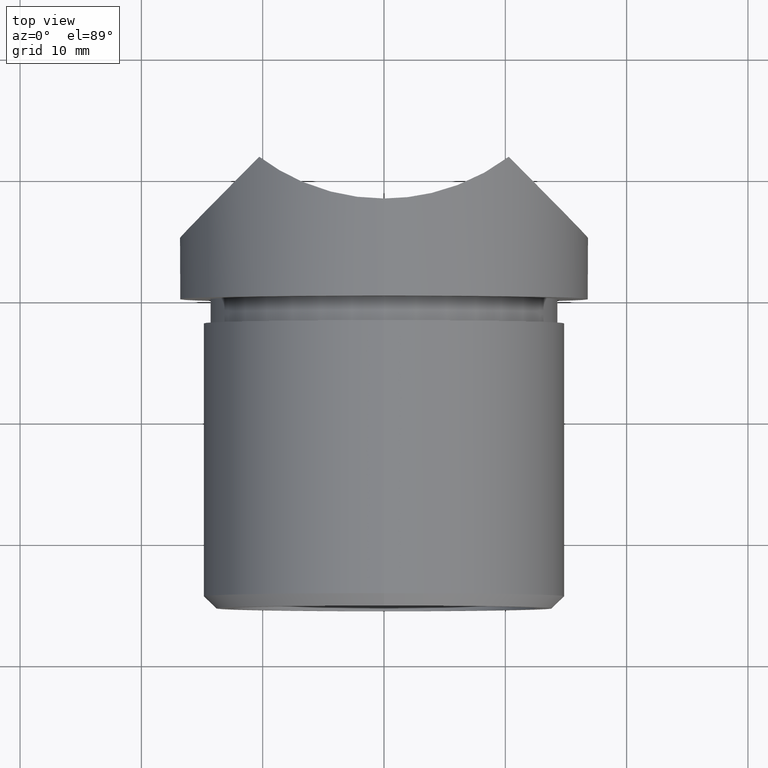
[diagram: clean part render]
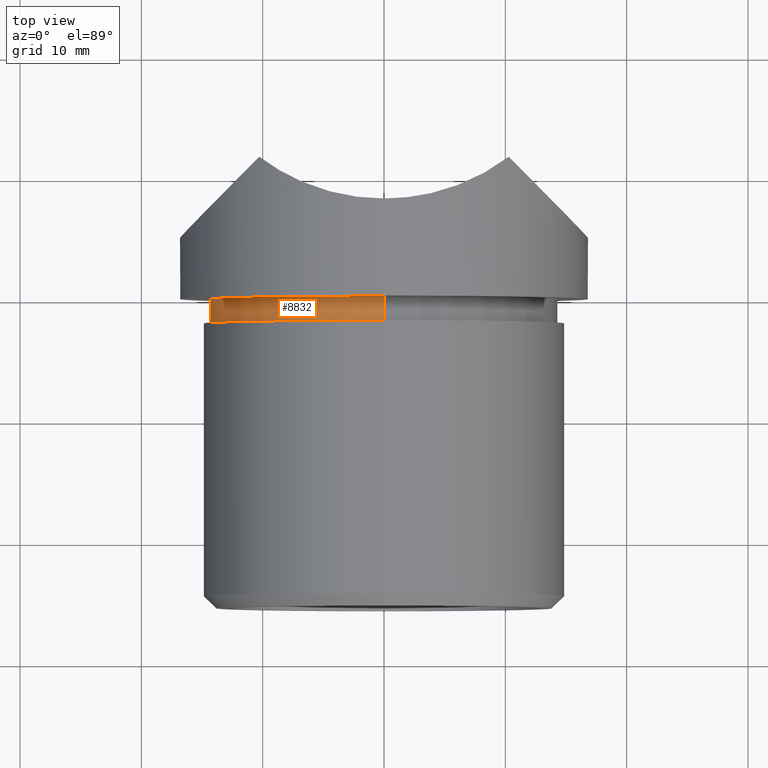
[diagram: same view with one face highlighted and labeled with its STEP entity id]
A machine part, top view. The second image highlights one B-rep face of the part: STEP entity #8832.
In plain terms, the highlighted cylindrical surface (partial cylindrical patch) has radius 14.35 mm, axis along (-0, 1, -0).
Its self-contained STEP definition (entity closure, byte-faithful):
#479 = DIRECTION ( 'NONE',  ( 0.0000000000000000000, -1.000000000000000000, 0.0000000000000000000 ) ) ;
#726 = DIRECTION ( 'NONE',  ( -0.0000000000000000000, 1.000000000000000000, -0.0000000000000000000 ) ) ;
#747 = ORIENTED_EDGE ( 'NONE', *, *, #4958, .F. ) ;
#850 = CARTESIAN_POINT ( 'NONE',  ( 0.0000000000000000000, -2.000000000000000000, 14.35000000000000100 ) ) ;
#1011 = VERTEX_POINT ( 'NONE', #6165 ) ;
#1566 = DIRECTION ( 'NONE',  ( 0.0000000000000000000, 0.0000000000000000000, 1.000000000000000000 ) ) ;
#1723 = AXIS2_PLACEMENT_3D ( 'NONE', #8522, #11538, #1566 ) ;
#2713 = CARTESIAN_POINT ( 'NONE',  ( 1.757368156776452000E-015, -2.000000000000000000, -14.35000000000000100 ) ) ;
#3111 = VERTEX_POINT ( 'NONE', #850 ) ;
#3952 = CIRCLE ( 'NONE', #11400, 14.35000000000000100 ) ;
#4474 = CARTESIAN_POINT ( 'NONE',  ( 0.0000000000000000000, 0.0000000000000000000, 0.0000000000000000000 ) ) ;
#4770 = CARTESIAN_POINT ( 'NONE',  ( 0.0000000000000000000, -2.000000000000000000, 14.35000000000000100 ) ) ;
#4958 = EDGE_CURVE ( 'NONE', #6321, #1011, #11175, .T. ) ;
#5086 = VERTEX_POINT ( 'NONE', #10193 ) ;
#5461 = DIRECTION ( 'NONE',  ( 0.0000000000000000000, 0.0000000000000000000, 1.000000000000000000 ) ) ;
#5854 = EDGE_LOOP ( 'NONE', ( #747, #6659, #7298, #10281 ) ) ;
#6038 = AXIS2_PLACEMENT_3D ( 'NONE', #4474, #11437, #5461 ) ;
#6165 = CARTESIAN_POINT ( 'NONE',  ( 1.757368156776452000E-015, 0.0000000000000000000, -14.35000000000000100 ) ) ;
#6321 = VERTEX_POINT ( 'NONE', #12938 ) ;
#6440 = CARTESIAN_POINT ( 'NONE',  ( 0.0000000000000000000, -2.000000000000000000, 0.0000000000000000000 ) ) ;
#6659 = ORIENTED_EDGE ( 'NONE', *, *, #12849, .F. ) ;
#6770 = VECTOR ( 'NONE', #11743, 1000.000000000000000 ) ;
#6831 = CYLINDRICAL_SURFACE ( 'NONE', #1723, 14.35000000000000100 ) ;
#7152 = FACE_OUTER_BOUND ( 'NONE', #5854, .T. ) ;
#7216 = CIRCLE ( 'NONE', #6038, 14.35000000000000100 ) ;
#7298 = ORIENTED_EDGE ( 'NONE', *, *, #10084, .T. ) ;
#7451 = DIRECTION ( 'NONE',  ( 0.0000000000000000000, 0.0000000000000000000, -1.000000000000000000 ) ) ;
#8522 = CARTESIAN_POINT ( 'NONE',  ( 0.0000000000000000000, -2.000000000000000000, 0.0000000000000000000 ) ) ;
#8529 = VECTOR ( 'NONE', #726, 1000.000000000000000 ) ;
#8832 = ADVANCED_FACE ( 'NONE', ( #7152 ), #6831, .T. ) ;
#9446 = LINE ( 'NONE', #4770, #6770 ) ;
#10084 = EDGE_CURVE ( 'NONE', #3111, #5086, #9446, .T. ) ;
#10193 = CARTESIAN_POINT ( 'NONE',  ( 0.0000000000000000000, 0.0000000000000000000, 14.35000000000000100 ) ) ;
#10281 = ORIENTED_EDGE ( 'NONE', *, *, #12458, .T. ) ;
#11175 = LINE ( 'NONE', #2713, #8529 ) ;
#11400 = AXIS2_PLACEMENT_3D ( 'NONE', #6440, #479, #7451 ) ;
#11437 = DIRECTION ( 'NONE',  ( -0.0000000000000000000, -1.000000000000000000, -0.0000000000000000000 ) ) ;
#11538 = DIRECTION ( 'NONE',  ( -0.0000000000000000000, 1.000000000000000000, -0.0000000000000000000 ) ) ;
#11743 = DIRECTION ( 'NONE',  ( -0.0000000000000000000, 1.000000000000000000, -0.0000000000000000000 ) ) ;
#12458 = EDGE_CURVE ( 'NONE', #5086, #1011, #7216, .T. ) ;
#12849 = EDGE_CURVE ( 'NONE', #3111, #6321, #3952, .T. ) ;
#12938 = CARTESIAN_POINT ( 'NONE',  ( 1.757368156776452000E-015, -2.000000000000000000, -14.35000000000000100 ) ) ;